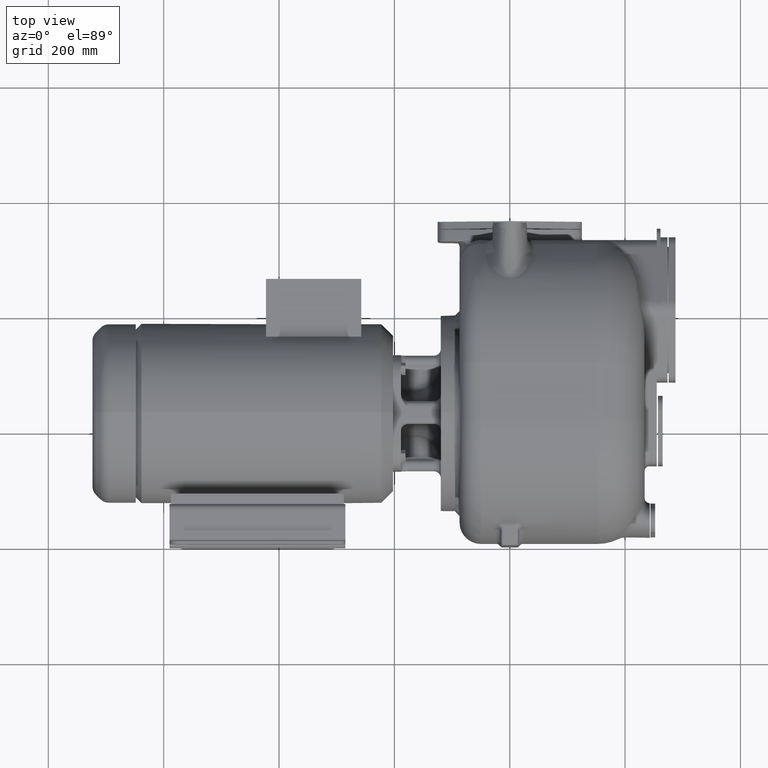
[diagram: clean part render]
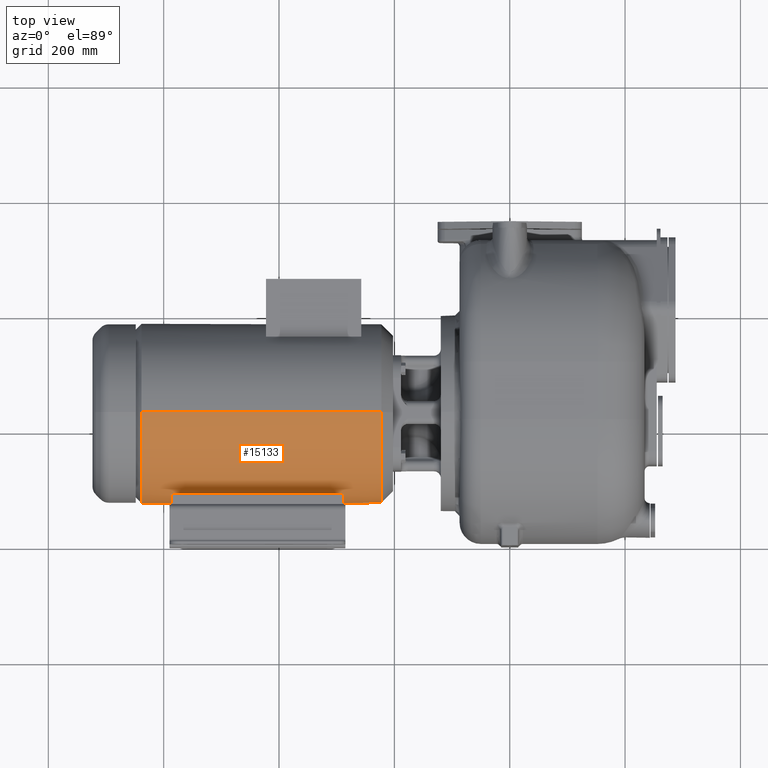
[diagram: same view with one face highlighted and labeled with its STEP entity id]
A machine part, top view. The second image highlights one B-rep face of the part: STEP entity #15133.
In plain terms, the highlighted cylindrical surface (partial cylindrical patch) has radius 155.5 mm, axis along (1, 0, 0).
Its self-contained STEP definition (entity closure, byte-faithful):
#709=CARTESIAN_POINT('',(-2.224999606120E2,2.3E2,0.E0));
#710=DIRECTION('',(1.E0,0.E0,0.E0));
#711=DIRECTION('',(0.E0,0.E0,1.E0));
#712=AXIS2_PLACEMENT_3D('',#709,#710,#711);
#714=CARTESIAN_POINT('',(-6.385E2,2.3E2,0.E0));
#715=DIRECTION('',(1.E0,0.E0,0.E0));
#716=DIRECTION('',(0.E0,-1.E0,0.E0));
#717=AXIS2_PLACEMENT_3D('',#714,#715,#716);
#719=CARTESIAN_POINT('',(-6.385E2,2.3E2,0.E0));
#720=DIRECTION('',(1.E0,0.E0,0.E0));
#721=DIRECTION('',(0.E0,0.E0,1.E0));
#722=AXIS2_PLACEMENT_3D('',#719,#720,#721);
#724=DIRECTION('',(1.E0,-3.415305564283E-11,2.366914649227E-8));
#725=VECTOR('',#724,4.160000098476E2);
#726=CARTESIAN_POINT('',(-6.385E2,2.3E2,1.555E2));
#727=LINE('',#726,#725);
#728=CARTESIAN_POINT('',(-5.875E2,2.3E2,0.E0));
#729=DIRECTION('',(1.E0,0.E0,0.E0));
#730=DIRECTION('',(0.E0,-9.903536977492E-1,-1.385624529030E-1));
#731=AXIS2_PLACEMENT_3D('',#728,#729,#730);
#733=DIRECTION('',(1.E0,0.E0,0.E0));
#734=VECTOR('',#733,3.E2);
#735=CARTESIAN_POINT('',(-5.875E2,8.8E1,-6.337389052283E1));
#736=LINE('',#735,#734);
#737=CARTESIAN_POINT('',(-2.875E2,2.3E2,0.E0));
#738=DIRECTION('',(1.E0,0.E0,0.E0));
#739=DIRECTION('',(0.E0,-9.903536977492E-1,-1.385624529030E-1));
#740=AXIS2_PLACEMENT_3D('',#737,#738,#739);
#742=CARTESIAN_POINT('',(-2.875E2,2.3E2,0.E0));
#743=DIRECTION('',(1.E0,0.E0,0.E0));
#744=DIRECTION('',(0.E0,-9.903536977492E-1,1.385624529030E-1));
#745=AXIS2_PLACEMENT_3D('',#742,#743,#744);
#747=CARTESIAN_POINT('',(-2.875E2,2.3E2,0.E0));
#748=DIRECTION('',(1.E0,0.E0,0.E0));
#749=DIRECTION('',(0.E0,-9.131832797428E-1,4.075491351951E-1));
#750=AXIS2_PLACEMENT_3D('',#747,#748,#749);
#752=DIRECTION('',(1.E0,0.E0,0.E0));
#753=VECTOR('',#752,3.E2);
#754=CARTESIAN_POINT('',(-5.875E2,8.8E1,6.337389052283E1));
#755=LINE('',#754,#753);
#756=CARTESIAN_POINT('',(-5.875E2,2.3E2,0.E0));
#757=DIRECTION('',(1.E0,0.E0,0.E0));
#758=DIRECTION('',(0.E0,-9.131832797428E-1,4.075491351951E-1));
#759=AXIS2_PLACEMENT_3D('',#756,#757,#758);
#761=CARTESIAN_POINT('',(-5.875E2,2.3E2,0.E0));
#762=DIRECTION('',(1.E0,0.E0,0.E0));
#763=DIRECTION('',(0.E0,-9.903536977492E-1,1.385624529030E-1));
#764=AXIS2_PLACEMENT_3D('',#761,#762,#763);
#799=DIRECTION('',(1.E0,3.415326060708E-11,-2.366914635563E-8));
#800=VECTOR('',#799,4.160000098476E2);
#801=CARTESIAN_POINT('',(-6.385E2,2.3E2,-1.555E2));
#802=LINE('',#801,#800);
#13542=CARTESIAN_POINT('',(-6.385E2,2.3E2,1.555E2));
#13544=VERTEX_POINT('',#13542);
#13545=CARTESIAN_POINT('',(-6.385E2,2.3E2,-1.555E2));
#13546=VERTEX_POINT('',#13545);
#13547=CARTESIAN_POINT('',(-6.385E2,7.45E1,3.794335829377E-14));
#13548=VERTEX_POINT('',#13547);
#13589=CARTESIAN_POINT('',(-2.875E2,8.8E1,6.337389052283E1));
#13590=VERTEX_POINT('',#13589);
#13591=CARTESIAN_POINT('',(-2.875E2,8.8E1,-6.337389052283E1));
#13592=VERTEX_POINT('',#13591);
#13593=CARTESIAN_POINT('',(-5.875E2,8.8E1,6.337389052283E1));
#13594=VERTEX_POINT('',#13593);
#13595=CARTESIAN_POINT('',(-5.875E2,8.8E1,-6.337389052283E1));
#13596=VERTEX_POINT('',#13595);
#13601=CARTESIAN_POINT('',(-2.224999606120E2,2.3E2,1.555E2));
#13602=CARTESIAN_POINT('',(-2.224999606120E2,2.3E2,-1.555E2));
#13603=VERTEX_POINT('',#13601);
#13604=VERTEX_POINT('',#13602);
#13637=CARTESIAN_POINT('',(-5.875E2,7.6E1,2.154646142642E1));
#13638=CARTESIAN_POINT('',(-5.875E2,7.6E1,-2.154646142642E1));
#13639=VERTEX_POINT('',#13637);
#13640=VERTEX_POINT('',#13638);
#13641=CARTESIAN_POINT('',(-2.875E2,7.6E1,2.154646142642E1));
#13642=CARTESIAN_POINT('',(-2.875E2,7.6E1,-2.154646142642E1));
#13643=VERTEX_POINT('',#13641);
#13644=VERTEX_POINT('',#13642);
#15101=CARTESIAN_POINT('',(-7.235E2,2.3E2,0.E0));
#15102=DIRECTION('',(1.E0,0.E0,0.E0));
#15103=DIRECTION('',(0.E0,0.E0,-1.E0));
#15104=AXIS2_PLACEMENT_3D('',#15101,#15102,#15103);
#15105=CYLINDRICAL_SURFACE('',#15104,1.555E2);
#15107=ORIENTED_EDGE('',*,*,#15106,.T.);
#15109=ORIENTED_EDGE('',*,*,#15108,.F.);
#15111=ORIENTED_EDGE('',*,*,#15110,.F.);
#15113=ORIENTED_EDGE('',*,*,#15112,.F.);
#15115=ORIENTED_EDGE('',*,*,#15114,.T.);
#15116=EDGE_LOOP('',(#15107,#15109,#15111,#15113,#15115));
#15117=FACE_OUTER_BOUND('',#15116,.F.);
#15118=ORIENTED_EDGE('',*,*,#15015,.T.);
#15120=ORIENTED_EDGE('',*,*,#15119,.T.);
#15121=ORIENTED_EDGE('',*,*,#15048,.F.);
#15123=ORIENTED_EDGE('',*,*,#15122,.F.);
#15125=ORIENTED_EDGE('',*,*,#15124,.F.);
#15127=ORIENTED_EDGE('',*,*,#15126,.F.);
#15129=ORIENTED_EDGE('',*,*,#15128,.T.);
#15130=ORIENTED_EDGE('',*,*,#15095,.T.);
#15131=EDGE_LOOP('',(#15118,#15120,#15121,#15123,#15125,#15127,#15129,#15130));
#15132=FACE_BOUND('',#15131,.F.);
#15133=ADVANCED_FACE('',(#15117,#15132),#15105,.T.);
#713=CIRCLE('',#712,1.555E2);
#718=CIRCLE('',#717,1.555E2);
#723=CIRCLE('',#722,1.555E2);
#732=CIRCLE('',#731,1.555E2);
#741=CIRCLE('',#740,1.555E2);
#746=CIRCLE('',#745,1.555E2);
#751=CIRCLE('',#750,1.555E2);
#760=CIRCLE('',#759,1.555E2);
#765=CIRCLE('',#764,1.555E2);
#15015=EDGE_CURVE('',#13640,#13596,#732,.T.);
#15048=EDGE_CURVE('',#13644,#13592,#741,.T.);
#15095=EDGE_CURVE('',#13639,#13640,#765,.T.);
#15106=EDGE_CURVE('',#13603,#13604,#713,.T.);
#15108=EDGE_CURVE('',#13546,#13604,#802,.T.);
#15110=EDGE_CURVE('',#13548,#13546,#718,.T.);
#15112=EDGE_CURVE('',#13544,#13548,#723,.T.);
#15114=EDGE_CURVE('',#13544,#13603,#727,.T.);
#15119=EDGE_CURVE('',#13596,#13592,#736,.T.);
#15122=EDGE_CURVE('',#13643,#13644,#746,.T.);
#15124=EDGE_CURVE('',#13590,#13643,#751,.T.);
#15126=EDGE_CURVE('',#13594,#13590,#755,.T.);
#15128=EDGE_CURVE('',#13594,#13639,#760,.T.);